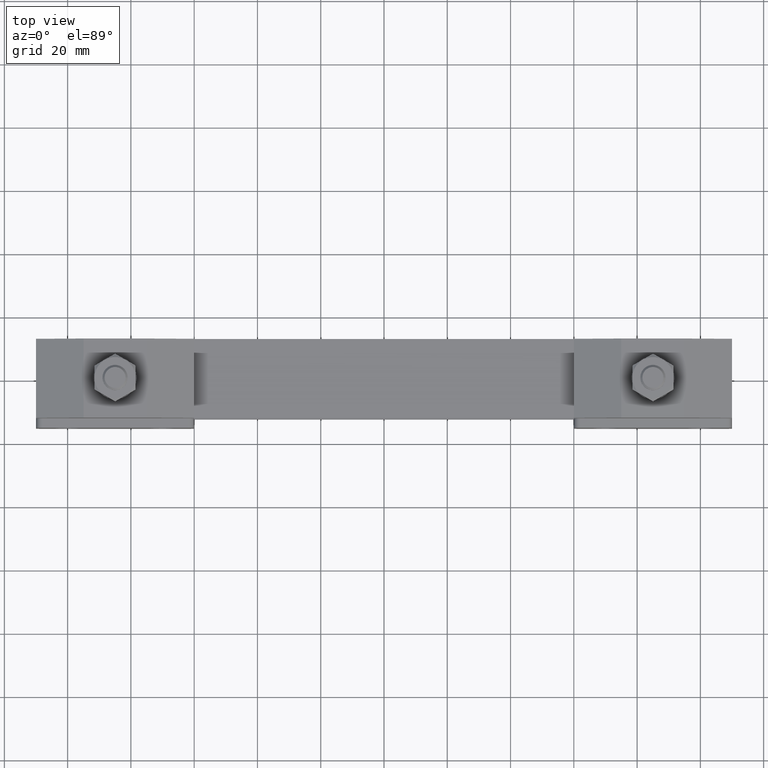
[diagram: clean part render]
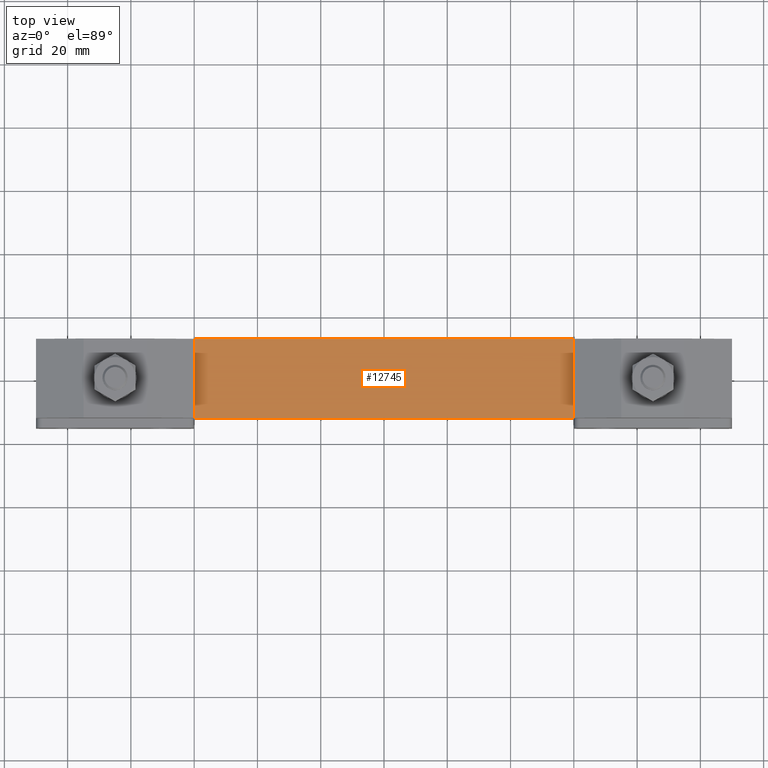
[diagram: same view with one face highlighted and labeled with its STEP entity id]
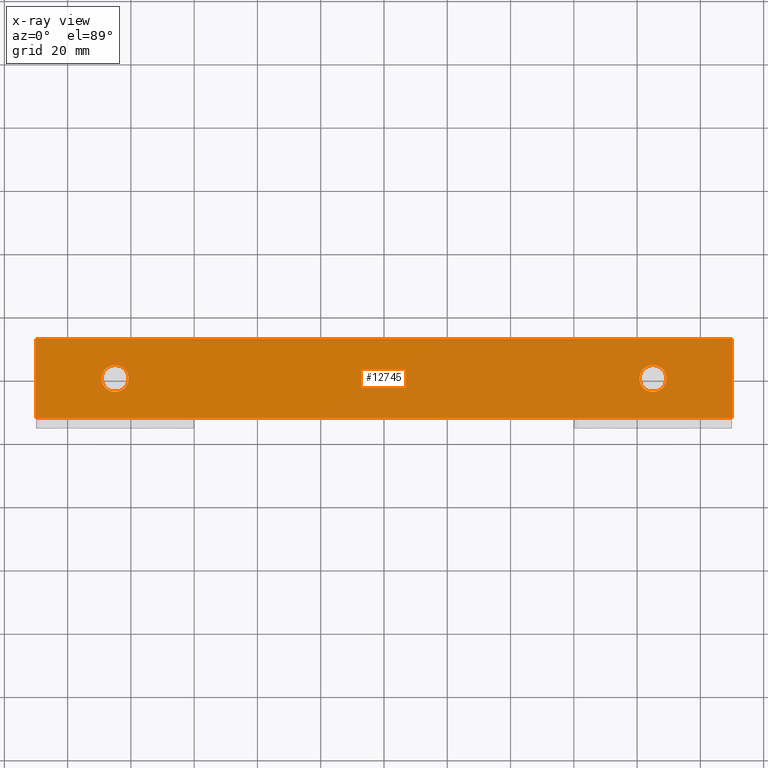
[diagram: x-ray of the same camera — body ghosted, the highlighted face saturated]
A machine part, top view. The second image highlights one B-rep face of the part: STEP entity #12745.
The next image is the same camera in x-ray: the body ghosted, the highlighted face saturated — about 0% of this face is hidden behind the body in this view.
In plain terms, the highlighted planar face has unit normal (0, 0, 1).
Its self-contained STEP definition (entity closure, byte-faithful):
#987 = EDGE_CURVE ( 'NONE', #8743, #3881, #22038, .T. ) ;
#1216 = VERTEX_POINT ( 'NONE', #10578 ) ;
#2182 = CARTESIAN_POINT ( 'NONE',  ( 80.75000000000000000, 2.081830801498040100E-014, 25.00000000000000000 ) ) ;
#3346 = CARTESIAN_POINT ( 'NONE',  ( 89.25000000000001400, 2.133878290461802200E-014, 25.00000000000000000 ) ) ;
#3403 = DIRECTION ( 'NONE',  ( 0.0000000000000000000, 0.0000000000000000000, -1.000000000000000000 ) ) ;
#3436 = EDGE_CURVE ( 'NONE', #20232, #13783, #6169, .T. ) ;
#3881 = VERTEX_POINT ( 'NONE', #3346 ) ;
#4088 = PLANE ( 'NONE',  #17811 ) ;
#4378 = EDGE_CURVE ( 'NONE', #9343, #18923, #10948, .T. ) ;
#4738 = DIRECTION ( 'NONE',  ( -1.000000000000000000, 0.0000000000000000000, 0.0000000000000000000 ) ) ;
#4782 = DIRECTION ( 'NONE',  ( 0.0000000000000000000, 1.000000000000000000, 0.0000000000000000000 ) ) ;
#4868 = AXIS2_PLACEMENT_3D ( 'NONE', #8530, #3403, #8318 ) ;
#5730 = CARTESIAN_POINT ( 'NONE',  ( -110.0000000000000000, -12.50000000000000000, 25.00000000000000000 ) ) ;
#5889 = CARTESIAN_POINT ( 'NONE',  ( -89.25000000000001400, 0.0000000000000000000, 25.00000000000000000 ) ) ;
#6018 = AXIS2_PLACEMENT_3D ( 'NONE', #9944, #10373, #6770 ) ;
#6169 = LINE ( 'NONE', #11511, #7226 ) ;
#6379 = EDGE_CURVE ( 'NONE', #7603, #1216, #20989, .T. ) ;
#6770 = DIRECTION ( 'NONE',  ( -1.000000000000000000, 0.0000000000000000000, 0.0000000000000000000 ) ) ;
#6937 = CIRCLE ( 'NONE', #4868, 4.250000000000003600 ) ;
#7226 = VECTOR ( 'NONE', #16446, 1000.000000000000000 ) ;
#7244 = FACE_BOUND ( 'NONE', #13484, .T. ) ;
#7603 = VERTEX_POINT ( 'NONE', #21725 ) ;
#8036 = VECTOR ( 'NONE', #17623, 1000.000000000000000 ) ;
#8318 = DIRECTION ( 'NONE',  ( -1.000000000000000000, 0.0000000000000000000, 0.0000000000000000000 ) ) ;
#8530 = CARTESIAN_POINT ( 'NONE',  ( -85.00000000000000000, 0.0000000000000000000, 25.00000000000000000 ) ) ;
#8638 = EDGE_LOOP ( 'NONE', ( #18589, #20984 ) ) ;
#8743 = VERTEX_POINT ( 'NONE', #2182 ) ;
#8783 = ORIENTED_EDGE ( 'NONE', *, *, #10034, .T. ) ;
#8848 = VECTOR ( 'NONE', #11147, 1000.000000000000000 ) ;
#9343 = VERTEX_POINT ( 'NONE', #5889 ) ;
#9890 = CARTESIAN_POINT ( 'NONE',  ( 110.0000000000000000, 12.50000000000000000, 25.00000000000000000 ) ) ;
#9944 = CARTESIAN_POINT ( 'NONE',  ( -85.00000000000000000, 0.0000000000000000000, 25.00000000000000000 ) ) ;
#10034 = EDGE_CURVE ( 'NONE', #1216, #20232, #20078, .T. ) ;
#10373 = DIRECTION ( 'NONE',  ( 0.0000000000000000000, 0.0000000000000000000, -1.000000000000000000 ) ) ;
#10512 = ORIENTED_EDGE ( 'NONE', *, *, #6379, .T. ) ;
#10578 = CARTESIAN_POINT ( 'NONE',  ( 110.0000000000000000, 12.50000000000000000, 25.00000000000000000 ) ) ;
#10783 = DIRECTION ( 'NONE',  ( 0.0000000000000000000, 0.0000000000000000000, 1.000000000000000000 ) ) ;
#10948 = CIRCLE ( 'NONE', #6018, 4.250000000000003600 ) ;
#11006 = CARTESIAN_POINT ( 'NONE',  ( -110.0000000000000000, -12.50000000000000000, 25.00000000000000000 ) ) ;
#11147 = DIRECTION ( 'NONE',  ( -1.000000000000000000, 0.0000000000000000000, 0.0000000000000000000 ) ) ;
#11508 = ORIENTED_EDGE ( 'NONE', *, *, #4378, .T. ) ;
#11511 = CARTESIAN_POINT ( 'NONE',  ( -110.0000000000000000, 12.50000000000000000, 25.00000000000000000 ) ) ;
#11590 = DIRECTION ( 'NONE',  ( 0.0000000000000000000, 0.0000000000000000000, -1.000000000000000000 ) ) ;
#11729 = AXIS2_PLACEMENT_3D ( 'NONE', #13062, #14838, #18185 ) ;
#11764 = FACE_BOUND ( 'NONE', #8638, .T. ) ;
#12354 = CIRCLE ( 'NONE', #11729, 4.250000000000003600 ) ;
#12745 = ADVANCED_FACE ( 'NONE', ( #18948, #11764, #7244 ), #4088, .T. ) ;
#12810 = LINE ( 'NONE', #11006, #8036 ) ;
#12830 = AXIS2_PLACEMENT_3D ( 'NONE', #13196, #11590, #4738 ) ;
#13062 = CARTESIAN_POINT ( 'NONE',  ( 85.00000000000000000, 2.081830801498040100E-014, 25.00000000000000000 ) ) ;
#13134 = EDGE_CURVE ( 'NONE', #18923, #9343, #6937, .T. ) ;
#13196 = CARTESIAN_POINT ( 'NONE',  ( 85.00000000000000000, 2.081830801498040100E-014, 25.00000000000000000 ) ) ;
#13415 = ORIENTED_EDGE ( 'NONE', *, *, #13134, .T. ) ;
#13484 = EDGE_LOOP ( 'NONE', ( #11508, #13415 ) ) ;
#13525 = VECTOR ( 'NONE', #4782, 1000.000000000000000 ) ;
#13783 = VERTEX_POINT ( 'NONE', #15121 ) ;
#14413 = CARTESIAN_POINT ( 'NONE',  ( -110.0000000000000000, 12.50000000000000000, 25.00000000000000000 ) ) ;
#14838 = DIRECTION ( 'NONE',  ( 0.0000000000000000000, 0.0000000000000000000, -1.000000000000000000 ) ) ;
#15085 = EDGE_CURVE ( 'NONE', #3881, #8743, #12354, .T. ) ;
#15121 = CARTESIAN_POINT ( 'NONE',  ( -110.0000000000000000, -12.50000000000000000, 25.00000000000000000 ) ) ;
#16389 = CARTESIAN_POINT ( 'NONE',  ( -80.75000000000000000, 5.204748896376247700E-016, 25.00000000000000000 ) ) ;
#16446 = DIRECTION ( 'NONE',  ( 0.0000000000000000000, -1.000000000000000000, 0.0000000000000000000 ) ) ;
#16527 = ORIENTED_EDGE ( 'NONE', *, *, #20645, .T. ) ;
#17623 = DIRECTION ( 'NONE',  ( 1.000000000000000000, 0.0000000000000000000, 0.0000000000000000000 ) ) ;
#17811 = AXIS2_PLACEMENT_3D ( 'NONE', #5730, #10783, #19410 ) ;
#18185 = DIRECTION ( 'NONE',  ( -1.000000000000000000, 0.0000000000000000000, 0.0000000000000000000 ) ) ;
#18589 = ORIENTED_EDGE ( 'NONE', *, *, #987, .T. ) ;
#18923 = VERTEX_POINT ( 'NONE', #16389 ) ;
#18948 = FACE_OUTER_BOUND ( 'NONE', #20242, .T. ) ;
#19410 = DIRECTION ( 'NONE',  ( 1.000000000000000000, 0.0000000000000000000, 0.0000000000000000000 ) ) ;
#20078 = LINE ( 'NONE', #14413, #8848 ) ;
#20232 = VERTEX_POINT ( 'NONE', #20598 ) ;
#20242 = EDGE_LOOP ( 'NONE', ( #20304, #16527, #10512, #8783 ) ) ;
#20304 = ORIENTED_EDGE ( 'NONE', *, *, #3436, .T. ) ;
#20598 = CARTESIAN_POINT ( 'NONE',  ( -110.0000000000000000, 12.50000000000000000, 25.00000000000000000 ) ) ;
#20645 = EDGE_CURVE ( 'NONE', #13783, #7603, #12810, .T. ) ;
#20984 = ORIENTED_EDGE ( 'NONE', *, *, #15085, .T. ) ;
#20989 = LINE ( 'NONE', #9890, #13525 ) ;
#21725 = CARTESIAN_POINT ( 'NONE',  ( 110.0000000000000000, -12.50000000000000000, 25.00000000000000000 ) ) ;
#22038 = CIRCLE ( 'NONE', #12830, 4.250000000000003600 ) ;